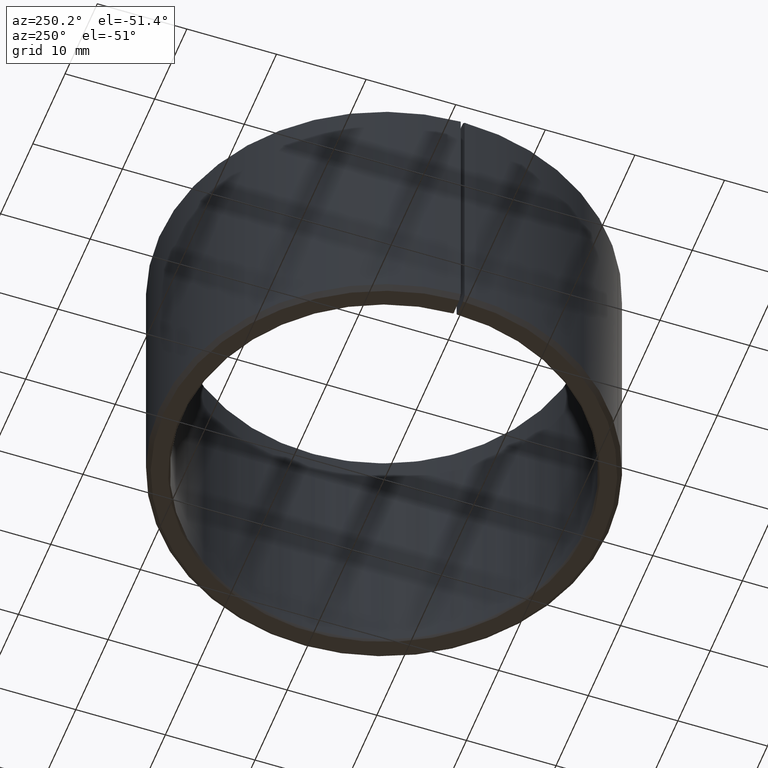
[diagram: clean part render]
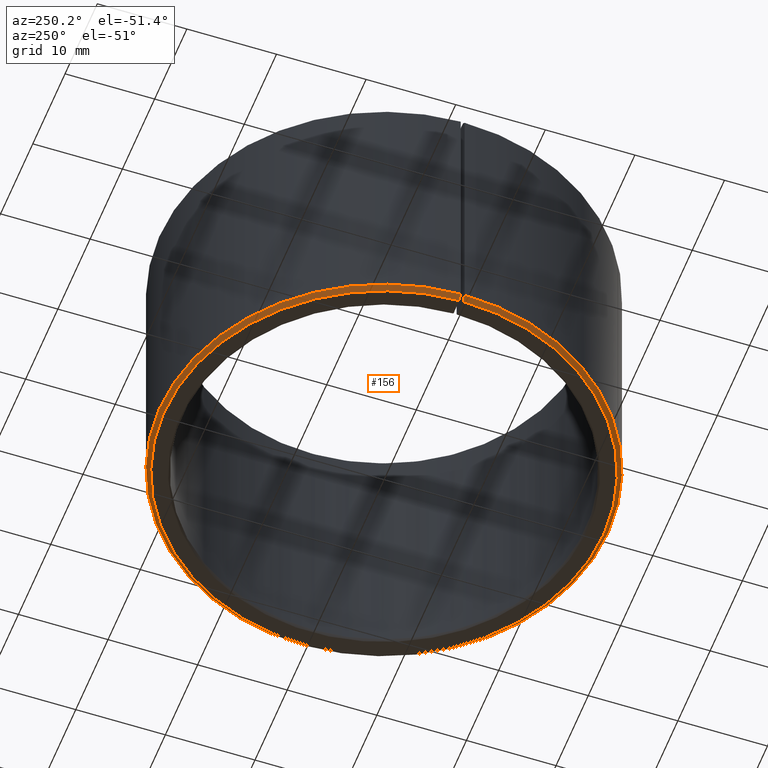
[diagram: same view with one face highlighted and labeled with its STEP entity id]
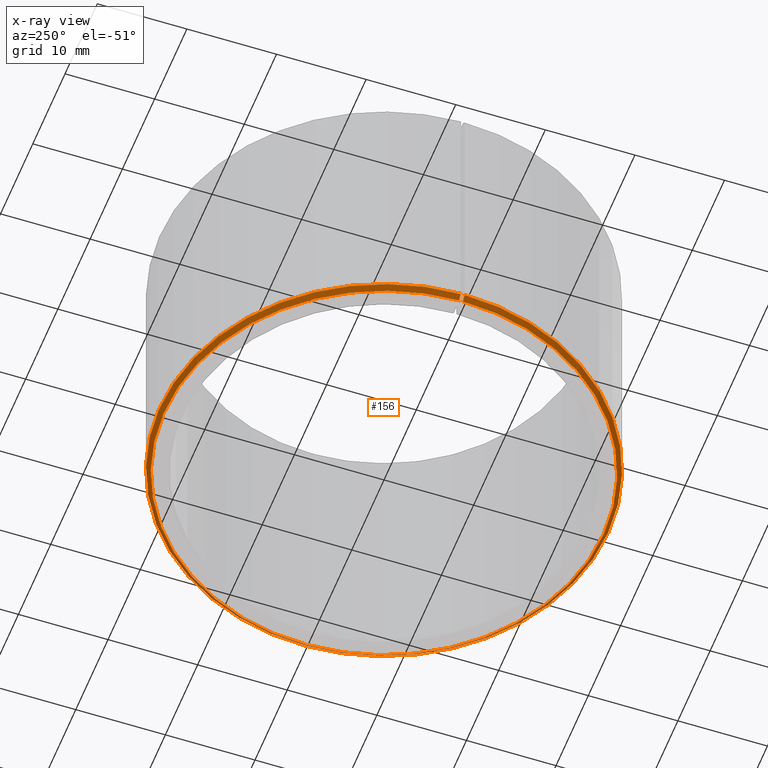
[diagram: x-ray of the same camera — body ghosted, the highlighted face saturated]
A machine part, auxiliary view. The second image highlights one B-rep face of the part: STEP entity #156.
The next image is the same camera in x-ray: the body ghosted, the highlighted face saturated — about 0% of this face is hidden behind the body in this view.
In plain terms, the highlighted conical surface has half-angle 45 deg.
Its self-contained STEP definition (entity closure, byte-faithful):
#156=ADVANCED_FACE('',(#171),#172,.T.);
#171=FACE_OUTER_BOUND('',#192,.T.);
#172=CONICAL_SURFACE('',#193,0.0245,0.785398163397453);
#192=EDGE_LOOP('',(#227,#228,#229,#230));
#193=AXIS2_PLACEMENT_3D('',#231,#232,#233);
#227=ORIENTED_EDGE('',*,*,#294,.T.);
#228=ORIENTED_EDGE('',*,*,#295,.F.);
#229=ORIENTED_EDGE('',*,*,#291,.F.);
#230=ORIENTED_EDGE('',*,*,#296,.T.);
#231=CARTESIAN_POINT('',(-3.46944695195362E-018,-2.60208521396521E-018,1.24683249835833E-018));
#232=DIRECTION('',(-6.12323399573677E-017,0.0,1.0));
#233=DIRECTION('',(1.0,0.0,6.12323399573677E-017));
#291=EDGE_CURVE('',#321,#322,#323,.T.);
#294=EDGE_CURVE('',#326,#327,#328,.T.);
#295=EDGE_CURVE('',#322,#327,#329,.T.);
#296=EDGE_CURVE('',#321,#326,#330,.T.);
#321=VERTEX_POINT('',#365);
#322=VERTEX_POINT('',#366);
#323=CIRCLE('',#367,0.0245);
#326=VERTEX_POINT('',#372);
#327=VERTEX_POINT('',#373);
#328=CIRCLE('',#374,0.025);
#329=LINE('',#375,#376);
#330=LINE('',#377,#378);
#365=CARTESIAN_POINT('',(0.000427583957713444,0.0244962685313316,1.27301446461736E-018));
#366=CARTESIAN_POINT('',(-3.46944695195362E-018,0.0245,1.24683249835833E-018));
#367=AXIS2_PLACEMENT_3D('',#417,#418,#419);
#372=CARTESIAN_POINT('',(0.000436310160932086,0.0249961923789098,0.0005));
#373=CARTESIAN_POINT('',(-3.46944695195362E-018,0.025,0.0005));
#374=AXIS2_PLACEMENT_3D('',#422,#423,#424);
#375=CARTESIAN_POINT('',(-3.46944695195362E-018,0.0245,1.24683249835833E-018));
#376=VECTOR('',#425,1.0);
#377=CARTESIAN_POINT('',(0.000427583957713444,0.0244962685313316,1.27301446461736E-018));
#378=VECTOR('',#426,1.0);
#417=CARTESIAN_POINT('',(-3.46944695195362E-018,-2.60208521396521E-018,1.24683249835833E-018));
#418=DIRECTION('',(6.12323399573677E-017,0.0,-1.0));
#419=DIRECTION('',(-1.0,0.0,-6.12323399573677E-017));
#422=CARTESIAN_POINT('',(-3.46944695195362E-018,-2.60208521396521E-018,0.0005));
#423=DIRECTION('',(6.12323399573677E-017,0.0,-1.0));
#424=DIRECTION('',(-1.0,0.0,-6.12323399573677E-017));
#425=DIRECTION('',(0.0,0.707106781186551,0.707106781186544));
#426=DIRECTION('',(0.012340714939827,0.706999085398828,0.707106781186544));